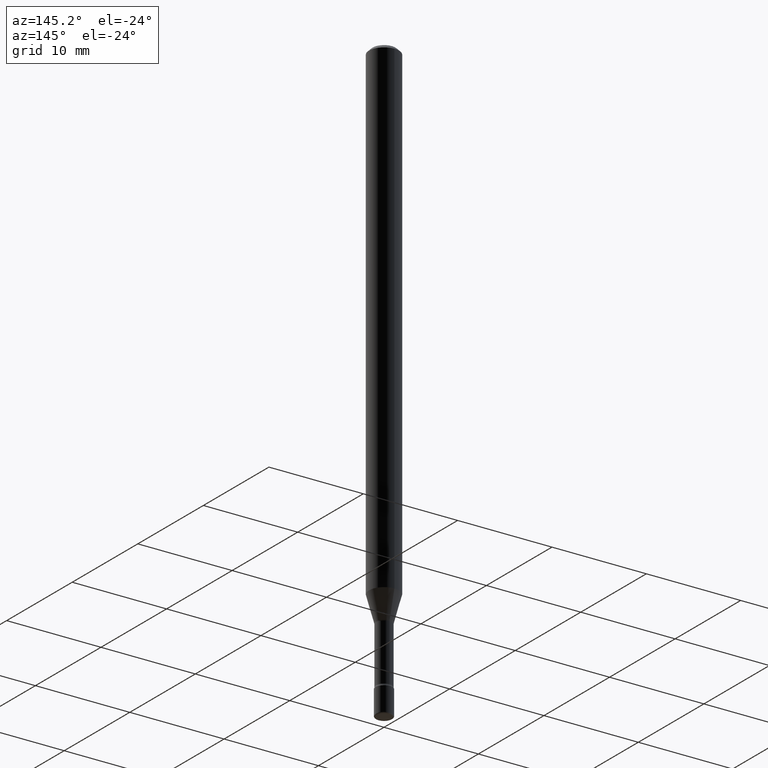
[diagram: clean part render]
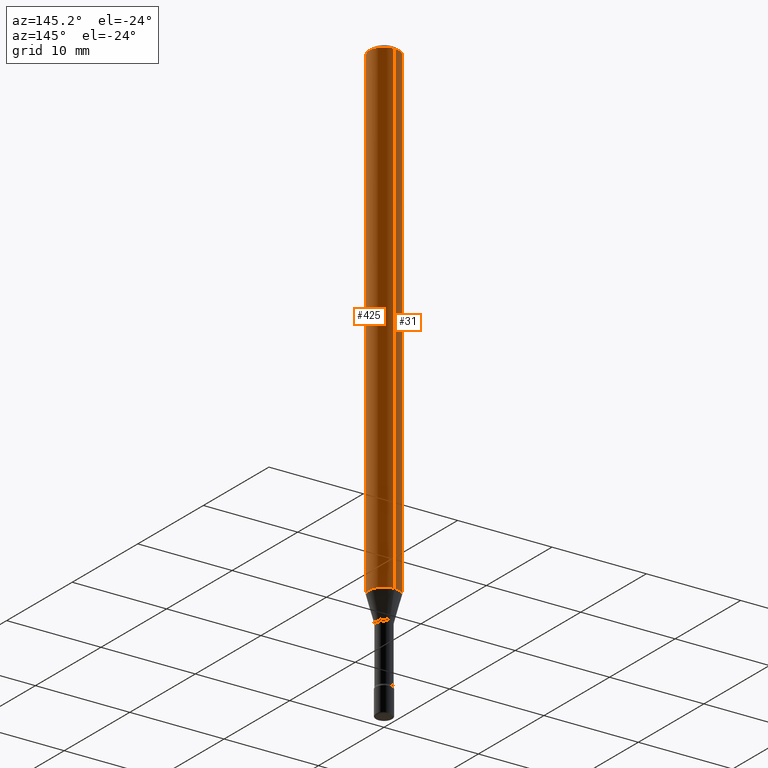
[diagram: same view with one multi-face feature highlighted, each face labeled with its STEP entity id]
A machine part, auxiliary view. The highlighted faces form ONE feature: a constant-radius fillet chain: 2 tangent blend faces with common blend radius 1.5875 mm. The faces share edges in the B-rep.
Their STEP definitions:
[1] entity #425 (Cylinder):
#32 = CARTESIAN_POINT ( 'NONE',  ( -4.364351673553912750E-16, -0.06250000000000005551, -0.01499999999999981036 ) ) ;
#47 = EDGE_CURVE ( 'NONE', #201, #489, #355, .T. ) ;
#57 = AXIS2_PLACEMENT_3D ( 'NONE', #229, #502, #106 ) ;
#58 = DIRECTION ( 'NONE',  ( -2.445417640947345847E-29, 3.491554610375806299E-15, 1.000000000000000000 ) ) ;
#106 = DIRECTION ( 'NONE',  ( -6.982962677686265922E-15, -1.000000000000000000, 3.483106191921935554E-15 ) ) ;
#115 = CARTESIAN_POINT ( 'NONE',  ( -1.169113584055446105E-44, 1.669184350826100908E-30, 4.780733988912460139E-16 ) ) ;
#123 = AXIS2_PLACEMENT_3D ( 'NONE', #500, #58, #321 ) ;
#148 = ORIENTED_EDGE ( 'NONE', *, *, #47, .F. ) ;
#152 = DIRECTION ( 'NONE',  ( -2.445417640947345847E-29, 3.491554610375806299E-15, 1.000000000000000000 ) ) ;
#174 = ORIENTED_EDGE ( 'NONE', *, *, #319, .T. ) ;
#201 = VERTEX_POINT ( 'NONE', #267 ) ;
#229 = CARTESIAN_POINT ( 'NONE',  ( 3.668126461421025373E-31, -5.237331915563719680E-17, -0.01500000000000002720 ) ) ;
#234 = ORIENTED_EDGE ( 'NONE', *, *, #346, .T. ) ;
#240 = EDGE_LOOP ( 'NONE', ( #234, #174, #369, #148 ) ) ;
#253 = CARTESIAN_POINT ( 'NONE',  ( 4.440892098501128074E-16, 0.06249999999999995837, -0.01500000000000024578 ) ) ;
#267 = CARTESIAN_POINT ( 'NONE',  ( -4.364351673553419219E-16, -0.06250000000000714706, -2.039531296095961732 ) ) ;
#276 = VERTEX_POINT ( 'NONE', #253 ) ;
#293 = VECTOR ( 'NONE', #488, 39.37007874015748143 ) ;
#319 = EDGE_CURVE ( 'NONE', #531, #276, #417, .T. ) ;
#321 = DIRECTION ( 'NONE',  ( -6.982962677686265922E-15, -1.000000000000000000, 4.370956789862821150E-15 ) ) ;
#329 = FACE_OUTER_BOUND ( 'NONE', #240, .T. ) ;
#346 = EDGE_CURVE ( 'NONE', #201, #531, #455, .T. ) ;
#355 = LINE ( 'NONE', #440, #527 ) ;
#369 = ORIENTED_EDGE ( 'NONE', *, *, #457, .F. ) ;
#412 = AXIS2_PLACEMENT_3D ( 'NONE', #115, #152, #468 ) ;
#417 = LINE ( 'NONE', #534, #293 ) ;
#425 = ADVANCED_FACE ( 'NONE', ( #329 ), #562, .T. ) ;
#440 = CARTESIAN_POINT ( 'NONE',  ( -4.364351673553916201E-16, -0.06250000000000000000, 6.962955620397339816E-16 ) ) ;
#455 = CIRCLE ( 'NONE', #123, 0.06250000000000000000 ) ;
#457 = EDGE_CURVE ( 'NONE', #489, #276, #561, .T. ) ;
#468 = DIRECTION ( 'NONE',  ( -6.982962677686265922E-15, -1.000000000000000000, 3.491554610375805905E-15 ) ) ;
#488 = DIRECTION ( 'NONE',  ( -2.445417640947345847E-29, 3.491554610375806299E-15, 1.000000000000000000 ) ) ;
#489 = VERTEX_POINT ( 'NONE', #32 ) ;
#500 = CARTESIAN_POINT ( 'NONE',  ( 4.987505810737270256E-29, -7.121134899889598635E-15, -2.039531296095961732 ) ) ;
#502 = DIRECTION ( 'NONE',  ( -2.445417640947345847E-29, 3.491554610375806299E-15, 1.000000000000000000 ) ) ;
#516 = CARTESIAN_POINT ( 'NONE',  ( 4.440892098501122158E-16, 0.06249999999999284600, -2.039531296095962176 ) ) ;
#525 = DIRECTION ( 'NONE',  ( -2.445417640947345847E-29, 3.491554610375806299E-15, 1.000000000000000000 ) ) ;
#527 = VECTOR ( 'NONE', #525, 39.37007874015748143 ) ;
#531 = VERTEX_POINT ( 'NONE', #516 ) ;
#534 = CARTESIAN_POINT ( 'NONE',  ( 4.440892098500625669E-16, 0.06250000000000000000, 2.598512357427581449E-16 ) ) ;
#561 = CIRCLE ( 'NONE', #57, 0.06250000000000000000 ) ;
#562 = CYLINDRICAL_SURFACE ( 'NONE', #412, 0.06250000000000000000 ) ;
[2] entity #31 (Cylinder):
#7 = FACE_OUTER_BOUND ( 'NONE', #101, .T. ) ;
#9 = AXIS2_PLACEMENT_3D ( 'NONE', #537, #133, #264 ) ;
#31 = ADVANCED_FACE ( 'NONE', ( #7 ), #170, .T. ) ;
#32 = CARTESIAN_POINT ( 'NONE',  ( -4.364351673553912750E-16, -0.06250000000000005551, -0.01499999999999981036 ) ) ;
#47 = EDGE_CURVE ( 'NONE', #201, #489, #355, .T. ) ;
#101 = EDGE_LOOP ( 'NONE', ( #512, #504, #165, #551 ) ) ;
#129 = DIRECTION ( 'NONE',  ( -6.982962677686265922E-15, -1.000000000000000000, 3.491554610375805905E-15 ) ) ;
#130 = EDGE_CURVE ( 'NONE', #531, #201, #255, .T. ) ;
#133 = DIRECTION ( 'NONE',  ( -2.445417640947345847E-29, 3.491554610375806299E-15, 1.000000000000000000 ) ) ;
#165 = ORIENTED_EDGE ( 'NONE', *, *, #47, .T. ) ;
#170 = CYLINDRICAL_SURFACE ( 'NONE', #393, 0.06250000000000000000 ) ;
#193 = DIRECTION ( 'NONE',  ( -6.982962677686265922E-15, -1.000000000000000000, 3.483106191921935554E-15 ) ) ;
#201 = VERTEX_POINT ( 'NONE', #267 ) ;
#253 = CARTESIAN_POINT ( 'NONE',  ( 4.440892098501128074E-16, 0.06249999999999995837, -0.01500000000000024578 ) ) ;
#255 = CIRCLE ( 'NONE', #9, 0.06250000000000000000 ) ;
#264 = DIRECTION ( 'NONE',  ( -6.982962677686265922E-15, -1.000000000000000000, 4.370956789862821150E-15 ) ) ;
#267 = CARTESIAN_POINT ( 'NONE',  ( -4.364351673553419219E-16, -0.06250000000000714706, -2.039531296095961732 ) ) ;
#276 = VERTEX_POINT ( 'NONE', #253 ) ;
#293 = VECTOR ( 'NONE', #488, 39.37007874015748143 ) ;
#319 = EDGE_CURVE ( 'NONE', #531, #276, #417, .T. ) ;
#352 = CARTESIAN_POINT ( 'NONE',  ( -1.169113584055446105E-44, 1.669184350826100908E-30, 4.780733988912460139E-16 ) ) ;
#355 = LINE ( 'NONE', #440, #527 ) ;
#362 = AXIS2_PLACEMENT_3D ( 'NONE', #376, #419, #193 ) ;
#376 = CARTESIAN_POINT ( 'NONE',  ( 3.668126461421025373E-31, -5.237331915563719680E-17, -0.01500000000000002720 ) ) ;
#393 = AXIS2_PLACEMENT_3D ( 'NONE', #352, #526, #129 ) ;
#405 = EDGE_CURVE ( 'NONE', #276, #489, #447, .T. ) ;
#417 = LINE ( 'NONE', #534, #293 ) ;
#419 = DIRECTION ( 'NONE',  ( -2.445417640947345847E-29, 3.491554610375806299E-15, 1.000000000000000000 ) ) ;
#440 = CARTESIAN_POINT ( 'NONE',  ( -4.364351673553916201E-16, -0.06250000000000000000, 6.962955620397339816E-16 ) ) ;
#447 = CIRCLE ( 'NONE', #362, 0.06250000000000000000 ) ;
#488 = DIRECTION ( 'NONE',  ( -2.445417640947345847E-29, 3.491554610375806299E-15, 1.000000000000000000 ) ) ;
#489 = VERTEX_POINT ( 'NONE', #32 ) ;
#504 = ORIENTED_EDGE ( 'NONE', *, *, #130, .T. ) ;
#512 = ORIENTED_EDGE ( 'NONE', *, *, #319, .F. ) ;
#516 = CARTESIAN_POINT ( 'NONE',  ( 4.440892098501122158E-16, 0.06249999999999284600, -2.039531296095962176 ) ) ;
#525 = DIRECTION ( 'NONE',  ( -2.445417640947345847E-29, 3.491554610375806299E-15, 1.000000000000000000 ) ) ;
#526 = DIRECTION ( 'NONE',  ( -2.445417640947345847E-29, 3.491554610375806299E-15, 1.000000000000000000 ) ) ;
#527 = VECTOR ( 'NONE', #525, 39.37007874015748143 ) ;
#531 = VERTEX_POINT ( 'NONE', #516 ) ;
#534 = CARTESIAN_POINT ( 'NONE',  ( 4.440892098500625669E-16, 0.06250000000000000000, 2.598512357427581449E-16 ) ) ;
#537 = CARTESIAN_POINT ( 'NONE',  ( 4.987505810737270256E-29, -7.121134899889598635E-15, -2.039531296095961732 ) ) ;
#551 = ORIENTED_EDGE ( 'NONE', *, *, #405, .F. ) ;